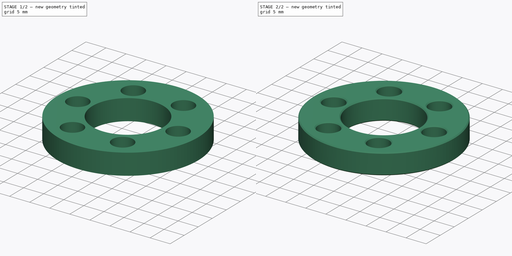
[diagram: build sequence overview — one tinted view per stage of 2, left to right]
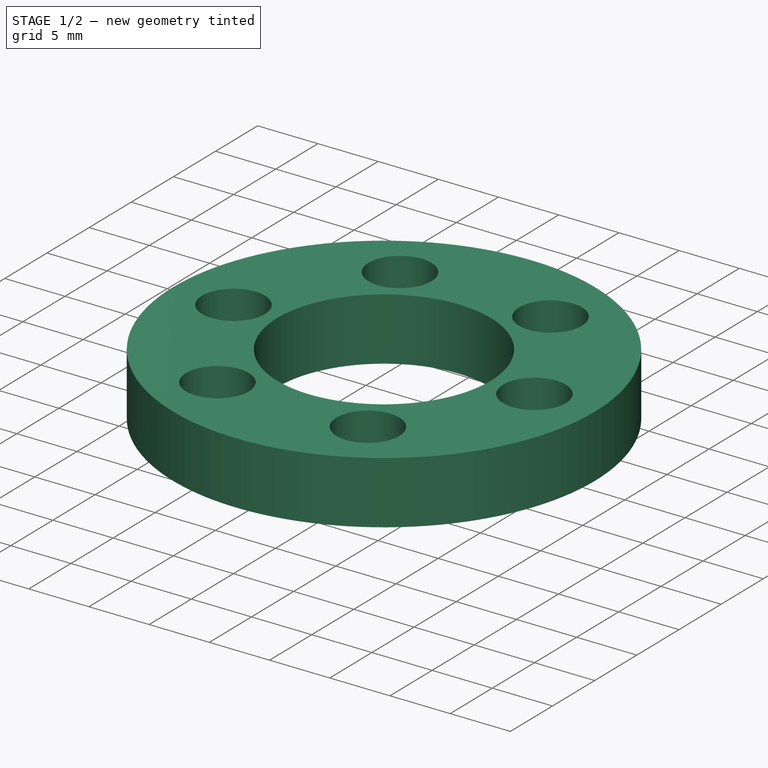
[diagram: stage 1 of 2 — iso view after this stage's code; geometry added in this stage tinted green]
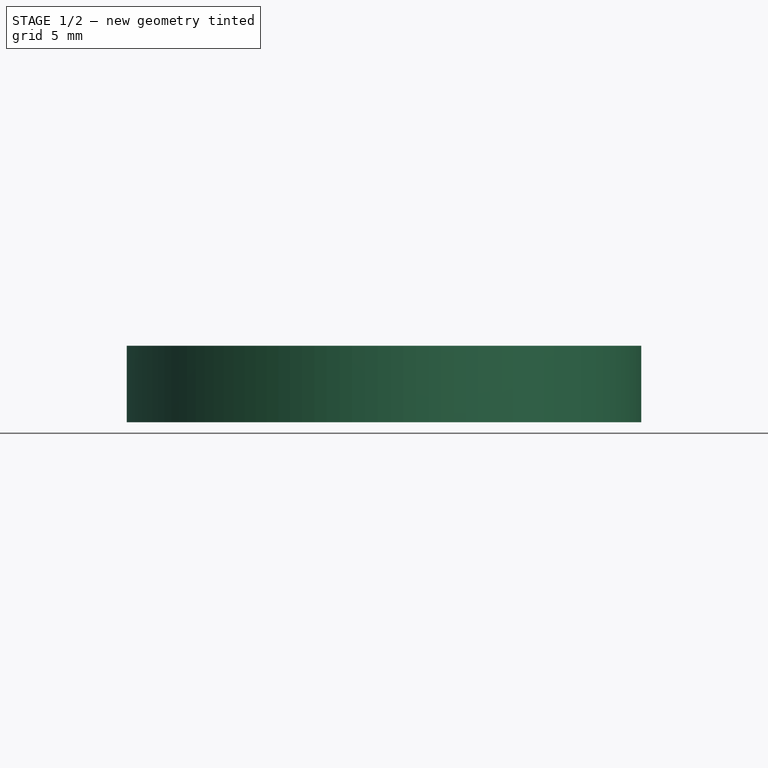
[diagram: stage 1 of 2 — front view after this stage's code; geometry added in this stage tinted green]
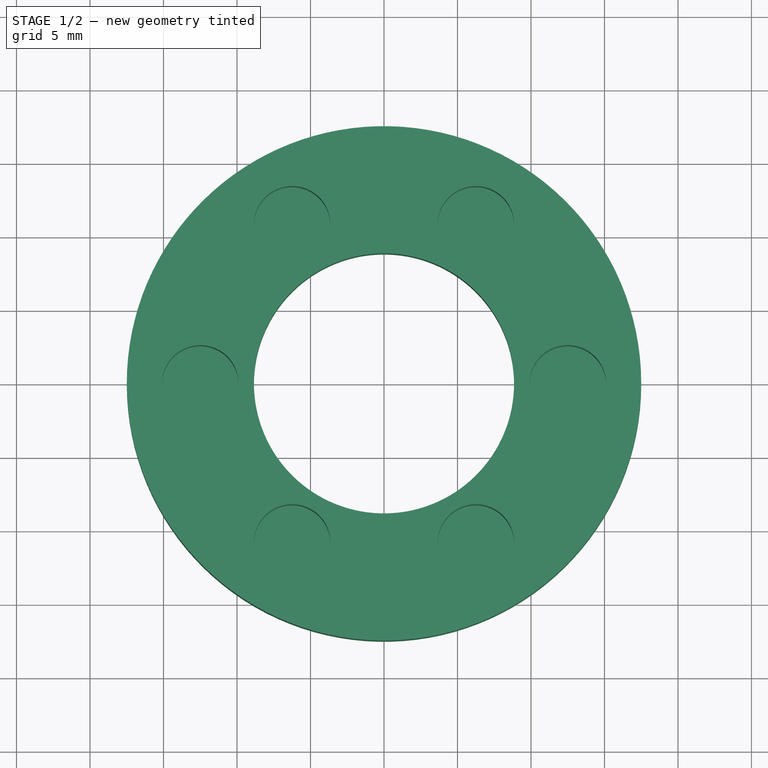
[diagram: stage 1 of 2 — top view after this stage's code; geometry added in this stage tinted green]
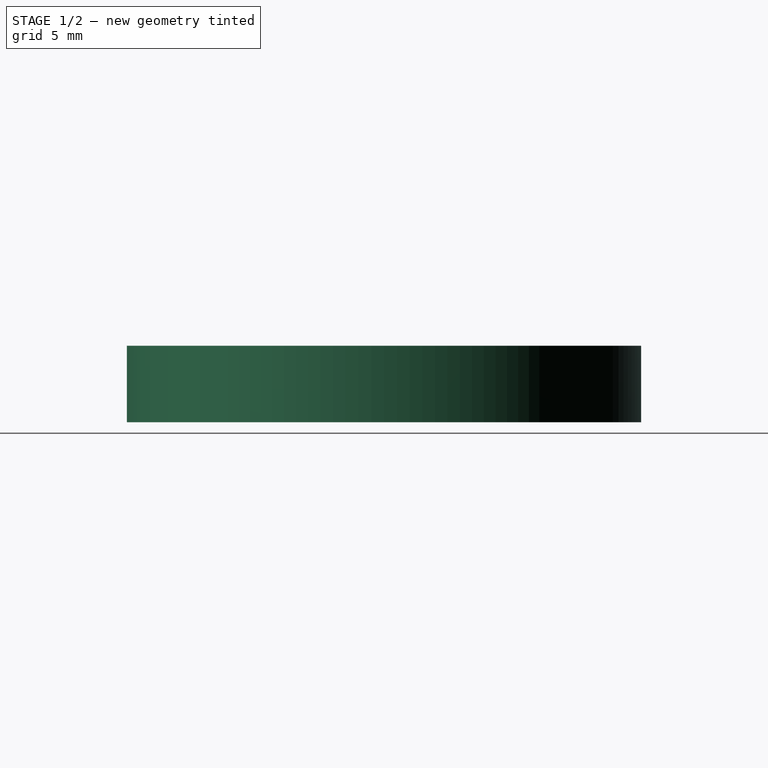
[diagram: stage 1 of 2 — right view after this stage's code; geometry added in this stage tinted green]
FCSTD DOCUMENT  (FreeCAD 0.21R33771 (Git))
Label: Cage
License: All rights reserved
LicenseURL: http://en.wikipedia.org/wiki/All_rights_reserved
objects: PartDesign::CoordinateSystem×2, Sketcher::SketchObject×2, PartDesign::Pad×2, PartDesign::Chamfer×2, PartDesign::Body×1, App::Part×1
note: 13 computed .brp shape members not serialized (recipe doc carries the construction recipe); baked Part::Feature solids carry a one-line shape summary decoded from their .brp

FEATURE [PartDesign::CoordinateSystem] LCS_0
  AttacherType = Attacher::AttachEngine3D
  MapMode = 2
  Support = -> [X_Axis]
FEATURE [PartDesign::CoordinateSystem] LCS_001
  AttacherType = Attacher::AttachEngine3D
  MapMode = 2
  Support = -> [X_Axis001]
FEATURE [Sketcher::SketchObject] Sketch
  FullyConstrained = true
  MapMode = 5
  Support = -> [XY_Plane001]
  sketch-geometry (11):
    g0: Circle CenterX=0 CenterY=0 CenterZ=0 NormalX=0 NormalY=0 NormalZ=1 AngleXU=0 Radius=17.5
    g1: Circle CenterX=0 CenterY=0 CenterZ=0 NormalX=0 NormalY=0 NormalZ=1 AngleXU=0 Radius=8.85
    g2: Circle CenterX=0 CenterY=0 CenterZ=0 NormalX=0 NormalY=0 NormalZ=1 AngleXU=0 Radius=12.5
    g3: Circle CenterX=12.5 CenterY=0 CenterZ=0 NormalX=0 NormalY=0 NormalZ=1 AngleXU=0 Radius=2.6
    g4: LineSegment StartX=-6.25 StartY=10.8253 StartZ=0 EndX=6.25 EndY=-10.8253 EndZ=0
    g5: LineSegment StartX=6.25 StartY=10.8253 StartZ=0 EndX=-6.25 EndY=-10.8253 EndZ=0
    g6: Circle CenterX=-12.5 CenterY=0 CenterZ=0 NormalX=0 NormalY=0 NormalZ=1 AngleXU=0 Radius=2.6
    g7: Circle CenterX=-6.25 CenterY=10.8253 CenterZ=0 NormalX=0 NormalY=0 NormalZ=1 AngleXU=0 Radius=2.6
    g8: Circle CenterX=6.25 CenterY=10.8253 CenterZ=0 NormalX=0 NormalY=0 NormalZ=1 AngleXU=0 Radius=2.6
    g9: Circle CenterX=-6.25 CenterY=-10.8253 CenterZ=0 NormalX=0 NormalY=0 NormalZ=1 AngleXU=0 Radius=2.6
    g10: Circle CenterX=6.25 CenterY=-10.8253 CenterZ=0 NormalX=0 NormalY=0 NormalZ=1 AngleXU=0 Radius=2.6
  constraints (26):
    c: Coincident(g0,g-1)
    c: Coincident(g1,g0)
    c: Coincident(g2,g0)
    c: Diameter(g1) = 17.7
    c: PointOnObject(g3,g2)
    c: Horizontal(g3,g0)
    c: Diameter(g3) = 5.2
    c: Diameter(g0) = 35
    c: Diameter(g2) = 25
    c: PointOnObject(g6,g2)
    c: PointOnObject(g8,g2)
    c: PointOnObject(g10,g2)
    c: Equal(g3,g10)
    c: Equal(g10,g9)
    c: Equal(g9,g6)
    c: Equal(g6,g7)
    c: Equal(g7,g8)
    c: Symmetric(g4,g4,g0)
    c: Coincident(g4,g10)
    c: Coincident(g7,g4)
    c: Horizontal(g6,g0)
    c: Coincident(g9,g5)
    c: Coincident(g8,g5)
    c: Symmetric(g5,g5,g0)
    c: Angle(g-1,g4) = 2.0944
    c: Angle(g-1,g5) = 1.0472
FEATURE [PartDesign::Pad] Pad
  Direction = (0,0,1)
  Length = 5.2
  Length2 = 10
  Profile = -> Sketch
  ReferenceAxis = -> Sketch [N_Axis]
  Type = 0
FEATURE [Sketcher::SketchObject] Sketch001
  FullyConstrained = true
  MapMode = 5
  Support = -> [XY_Plane001]
  sketch-geometry (2):
    g0: Circle CenterX=0 CenterY=0 CenterZ=0 NormalX=0 NormalY=0 NormalZ=1 AngleXU=0 Radius=17.5
    g1: Circle CenterX=0 CenterY=0 CenterZ=0 NormalX=0 NormalY=0 NormalZ=1 AngleXU=0 Radius=8.85
  constraints (4):
    c: Coincident(g0,g-1)
    c: Coincident(g1,g0)
    c: Diameter(g1) = 17.7
    c: Diameter(g0) = 35
FEATURE [PartDesign::Pad] Pad001
  BaseFeature = -> Pad
  Direction = (0,0,1)
  Length = 0.2
  Length2 = 10
  Profile = -> Sketch001
  ReferenceAxis = -> Sketch001 [N_Axis]
  Type = 0
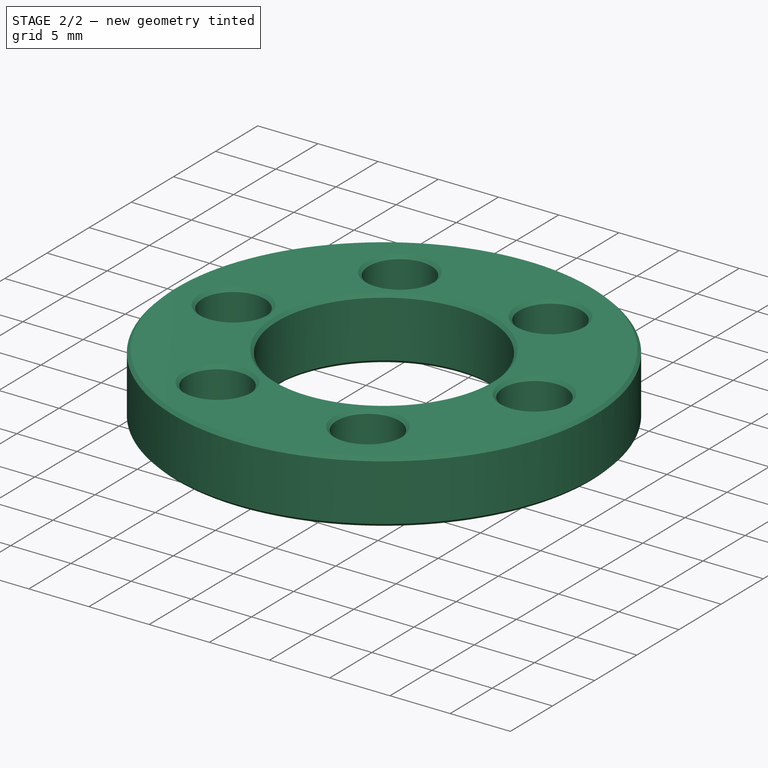
[diagram: stage 2 of 2 — iso view after this stage's code; geometry added in this stage tinted green]
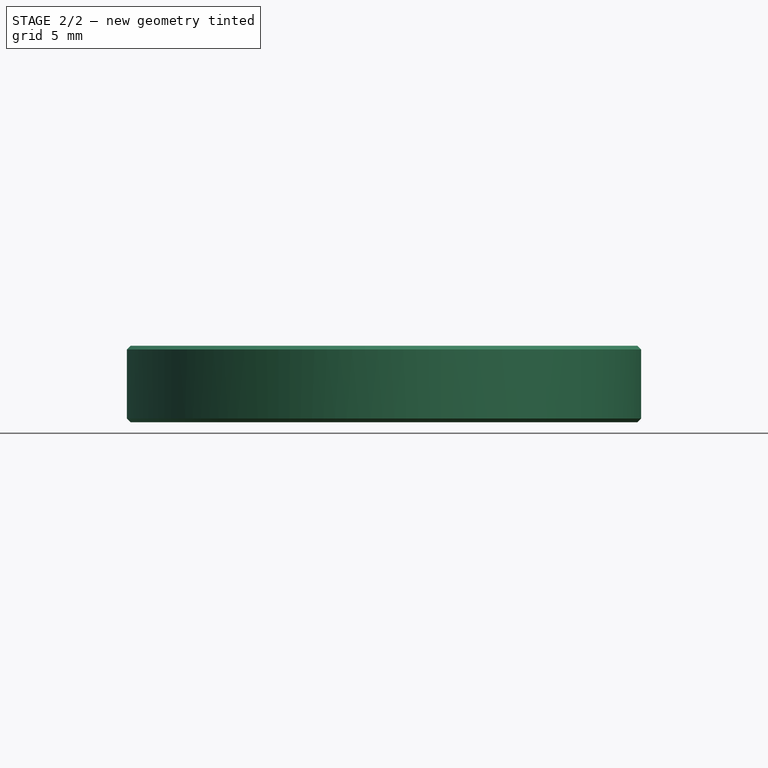
[diagram: stage 2 of 2 — front view after this stage's code; geometry added in this stage tinted green]
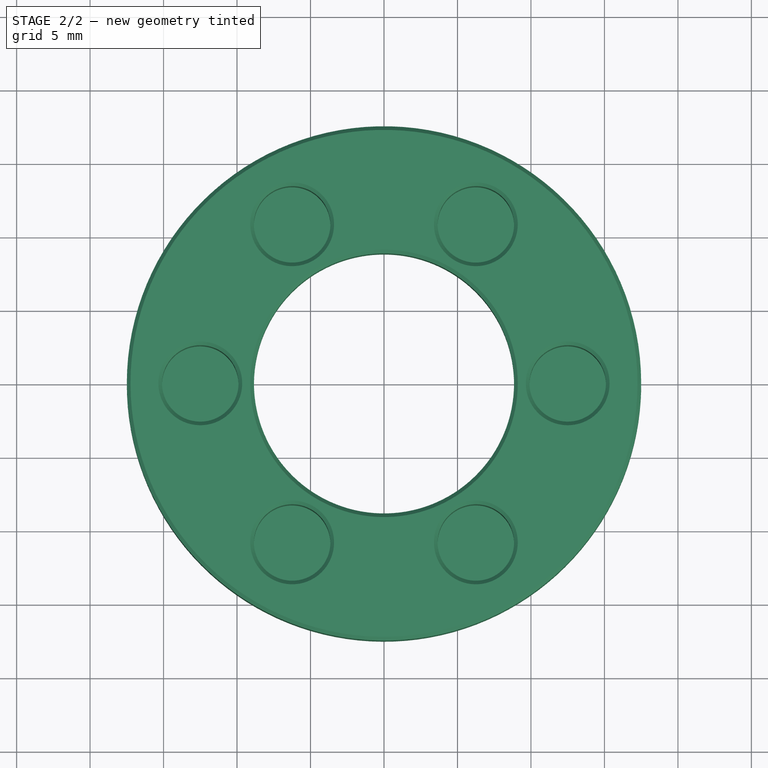
[diagram: stage 2 of 2 — top view after this stage's code; geometry added in this stage tinted green]
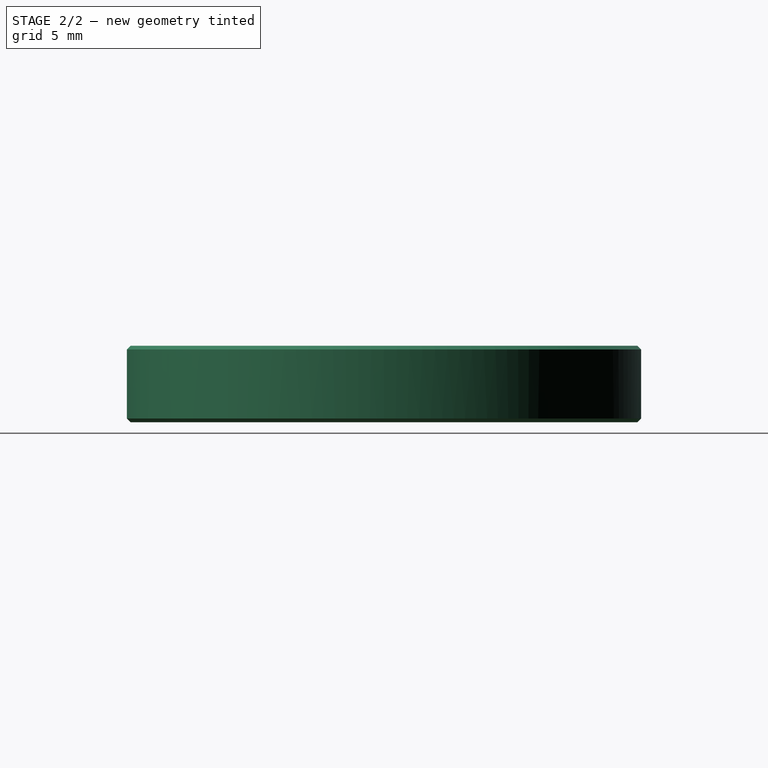
[diagram: stage 2 of 2 — right view after this stage's code; geometry added in this stage tinted green]
FEATURE [PartDesign::Chamfer] Chamfer
  Angle = 45
  Base = -> Pad001 [Face11]
  BaseFeature = -> Pad001
  ChamferType = 0
  FlipDirection = false
  Size = 0.25
  Size2 = 1
  SupportTransform = false
  UseAllEdges = false
FEATURE [PartDesign::Chamfer] Chamfer001
  Angle = 45
  Base = -> Chamfer [Edge6,Edge15]
  BaseFeature = -> Chamfer
  ChamferType = 0
  FlipDirection = false
  Size = 0.25
  Size2 = 1
  SupportTransform = false
  UseAllEdges = false
FEATURE [PartDesign::Body] Cage001
  Group = -> [LCS_001,Sketch,Pad,Sketch001,Pad001,Chamfer,Chamfer001]
  Origin = -> Origin001
  Tip = -> Chamfer001
FEATURE [App::Part] Cage
  Group = -> [LCS_0,Cage001]
  Origin = -> Origin
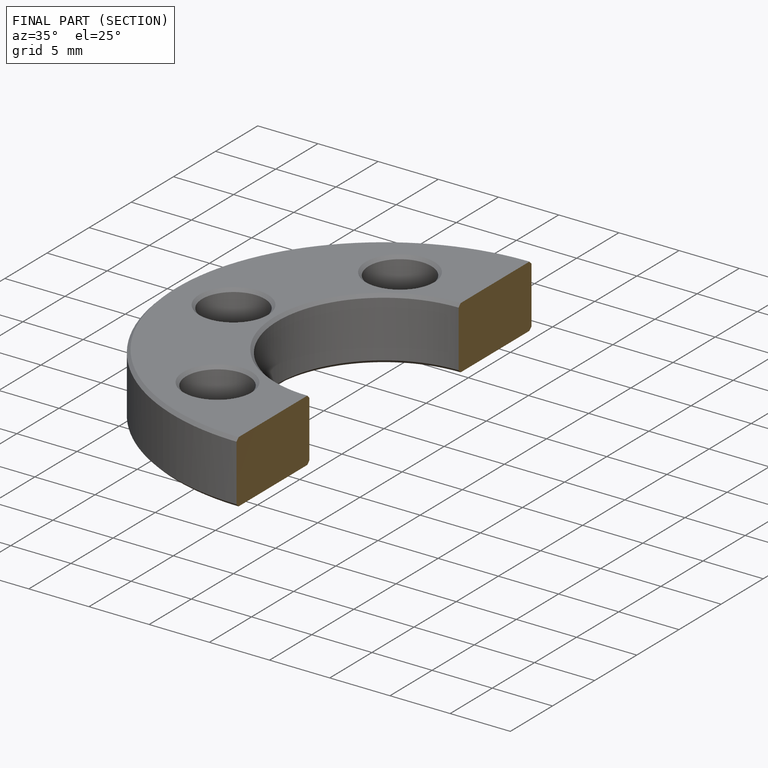
[diagram: finished part — half-section view (interior)]
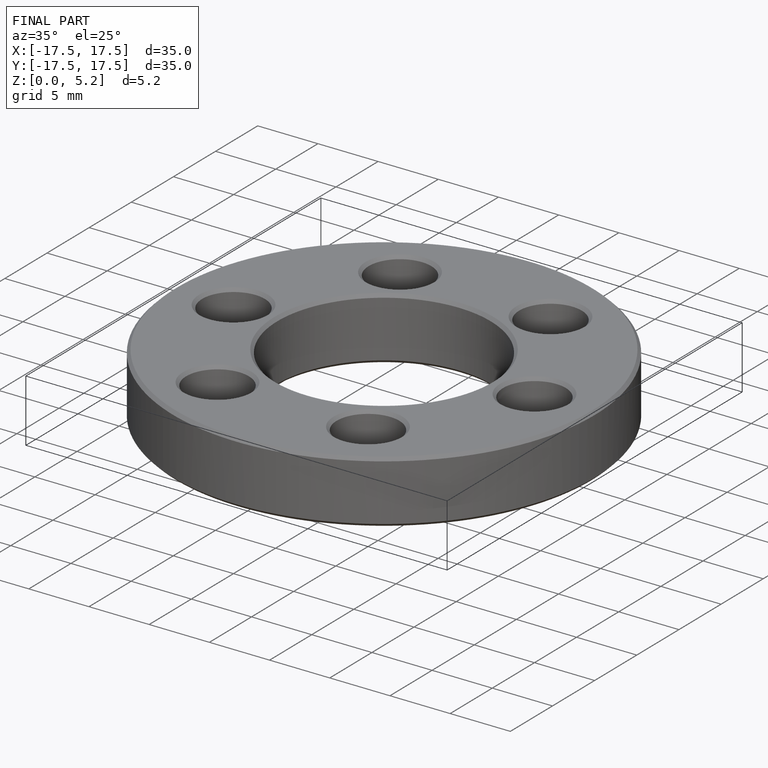
[diagram: finished part — iso view with bounding-box wireframe]
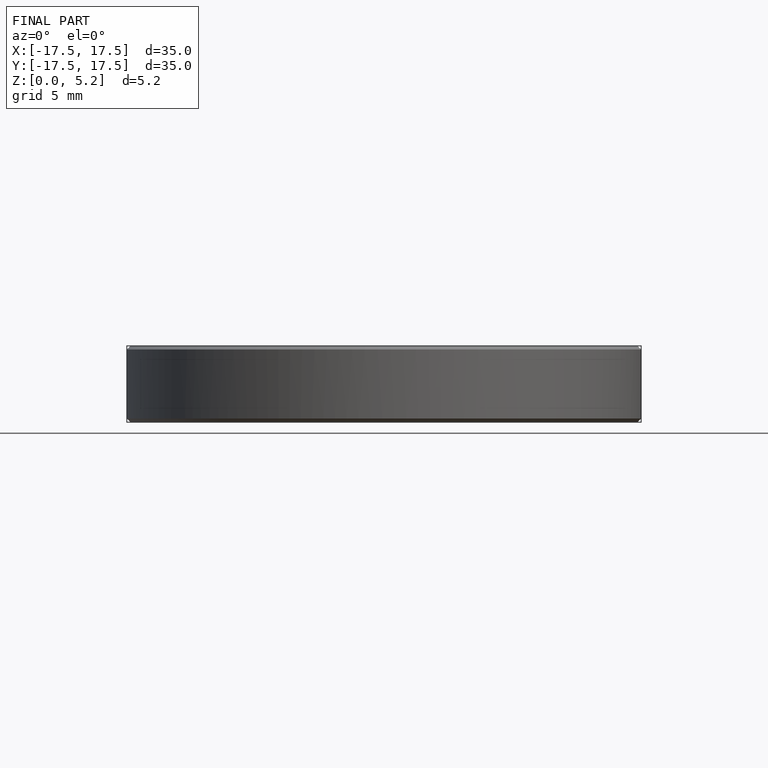
[diagram: finished part — front view with bounding-box wireframe]
